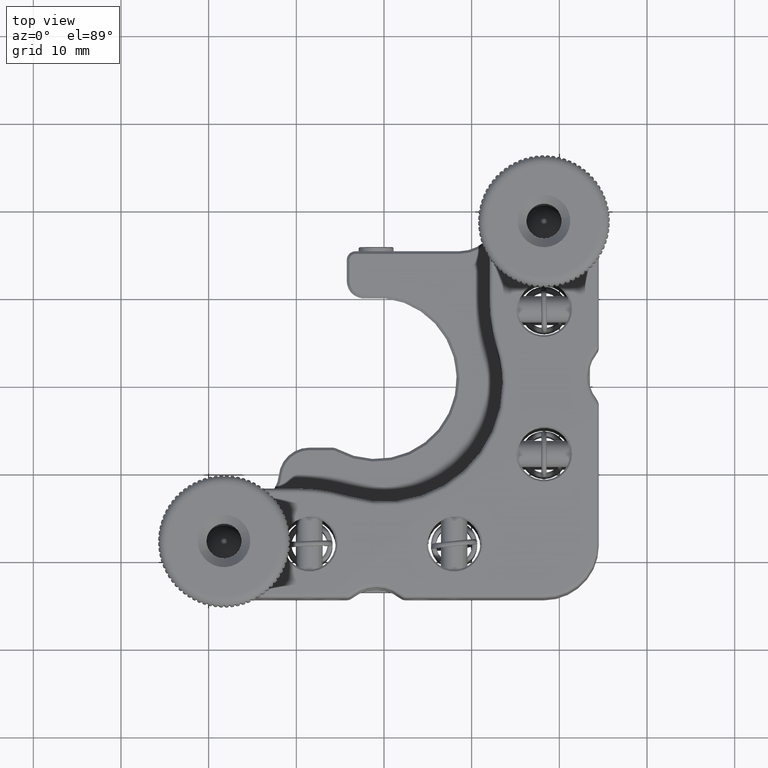
[diagram: clean part render]
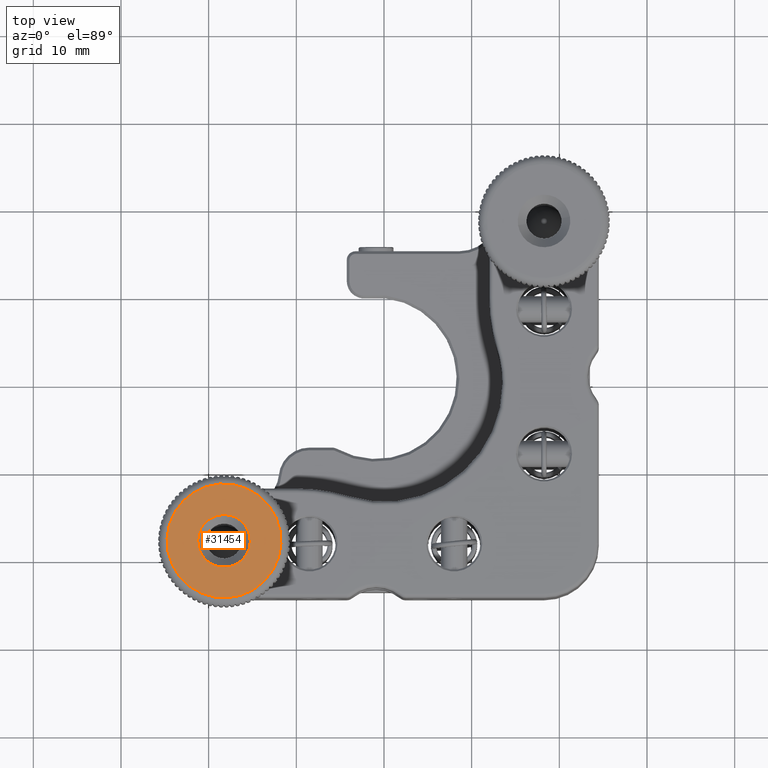
[diagram: same view with one face highlighted and labeled with its STEP entity id]
A machine part, top view. The second image highlights one B-rep face of the part: STEP entity #31454.
In plain terms, the highlighted planar face has unit normal (-0, 0, -1).
Its self-contained STEP definition (entity closure, byte-faithful):
#873 = DIRECTION ( 'NONE',  ( 1.665334536937734811E-16, -6.938893903907228378E-17, 1.000000000000000000 ) ) ;
#2541 = DIRECTION ( 'NONE',  ( -0.9070732269580148444, -0.4209728743469984269, 0.000000000000000000 ) ) ;
#7071 = ORIENTED_EDGE ( 'NONE', *, *, #45455, .T. ) ;
#7333 = DIRECTION ( 'NONE',  ( -1.665334536937734811E-16, 6.938893903907228378E-17, -1.000000000000000000 ) ) ;
#9583 = FACE_BOUND ( 'NONE', #28968, .T. ) ;
#10704 = VERTEX_POINT ( 'NONE', #44850 ) ;
#11251 = DIRECTION ( 'NONE',  ( -0.9070732269580148444, -0.4209728743469984269, 0.000000000000000000 ) ) ;
#14279 = DIRECTION ( 'NONE',  ( -0.9070732269580144003, -0.4209728743469993706, 0.000000000000000000 ) ) ;
#15192 = ORIENTED_EDGE ( 'NONE', *, *, #33763, .T. ) ;
#15335 = CIRCLE ( 'NONE', #27786, 3.000000000000000888 ) ;
#15379 = ORIENTED_EDGE ( 'NONE', *, *, #40322, .T. ) ;
#15733 = AXIS2_PLACEMENT_3D ( 'NONE', #52083, #20173, #42848 ) ;
#20173 = DIRECTION ( 'NONE',  ( -2.070671796903577672E-16, 5.057722832636533142E-17, -1.000000000000000000 ) ) ;
#21417 = AXIS2_PLACEMENT_3D ( 'NONE', #56067, #56640, #42359 ) ;
#23041 = VERTEX_POINT ( 'NONE', #40814 ) ;
#23818 = CIRCLE ( 'NONE', #34356, 3.000000000000000888 ) ;
#27786 = AXIS2_PLACEMENT_3D ( 'NONE', #47608, #7333, #11251 ) ;
#28542 = ORIENTED_EDGE ( 'NONE', *, *, #52205, .T. ) ;
#28968 = EDGE_LOOP ( 'NONE', ( #7071, #28542 ) ) ;
#29029 = CARTESIAN_POINT ( 'NONE',  ( -12.35402402477289030, -15.51367631674450642, 23.70182608337572816 ) ) ;
#30743 = VERTEX_POINT ( 'NONE', #29029 ) ;
#31454 = ADVANCED_FACE ( 'NONE', ( #51021, #9583 ), #33389, .F. ) ;
#33342 = CARTESIAN_POINT ( 'NONE',  ( -15.52878031912594103, -16.98708137695900433, 23.70182608337572816 ) ) ;
#33389 = PLANE ( 'NONE',  #15733 ) ;
#33763 = EDGE_CURVE ( 'NONE', #23041, #30743, #52582, .T. ) ;
#33922 = CARTESIAN_POINT ( 'NONE',  ( -18.24999999999998579, -18.25000000000000000, 23.70182608337572816 ) ) ;
#34215 = DIRECTION ( 'NONE',  ( -1.665334536937734811E-16, 6.938893903907228378E-17, -1.000000000000000000 ) ) ;
#34356 = AXIS2_PLACEMENT_3D ( 'NONE', #33922, #34215, #2541 ) ;
#36407 = CARTESIAN_POINT ( 'NONE',  ( -18.24999999999998579, -18.25000000000000000, 23.70182608337572816 ) ) ;
#37946 = EDGE_LOOP ( 'NONE', ( #15192, #15379 ) ) ;
#40322 = EDGE_CURVE ( 'NONE', #30743, #23041, #51866, .T. ) ;
#40814 = CARTESIAN_POINT ( 'NONE',  ( -24.14597597522708128, -20.98632368325549535, 23.70182608337572816 ) ) ;
#42359 = DIRECTION ( 'NONE',  ( -0.9070732269580150664, -0.4209728743469977608, 0.000000000000000000 ) ) ;
#42848 = DIRECTION ( 'NONE',  ( -0.9070732269580146223, -0.4209728743469985934, 1.665334536937734318E-16 ) ) ;
#43039 = AXIS2_PLACEMENT_3D ( 'NONE', #36407, #873, #14279 ) ;
#44850 = CARTESIAN_POINT ( 'NONE',  ( -20.97121968087402877, -19.51291862304099567, 23.70182608337572816 ) ) ;
#45455 = EDGE_CURVE ( 'NONE', #50974, #10704, #23818, .T. ) ;
#47608 = CARTESIAN_POINT ( 'NONE',  ( -18.24999999999998579, -18.25000000000000000, 23.70182608337572816 ) ) ;
#50974 = VERTEX_POINT ( 'NONE', #33342 ) ;
#51021 = FACE_OUTER_BOUND ( 'NONE', #37946, .T. ) ;
#51866 = CIRCLE ( 'NONE', #21417, 6.500000000000000000 ) ;
#52083 = CARTESIAN_POINT ( 'NONE',  ( -18.24999999999998579, -18.25000000000000000, 23.70182608337572816 ) ) ;
#52205 = EDGE_CURVE ( 'NONE', #10704, #50974, #15335, .T. ) ;
#52582 = CIRCLE ( 'NONE', #43039, 6.500000000000000888 ) ;
#56067 = CARTESIAN_POINT ( 'NONE',  ( -18.24999999999998579, -18.25000000000000000, 23.70182608337572816 ) ) ;
#56640 = DIRECTION ( 'NONE',  ( 1.665334536937734811E-16, -6.938893903907228378E-17, 1.000000000000000000 ) ) ;